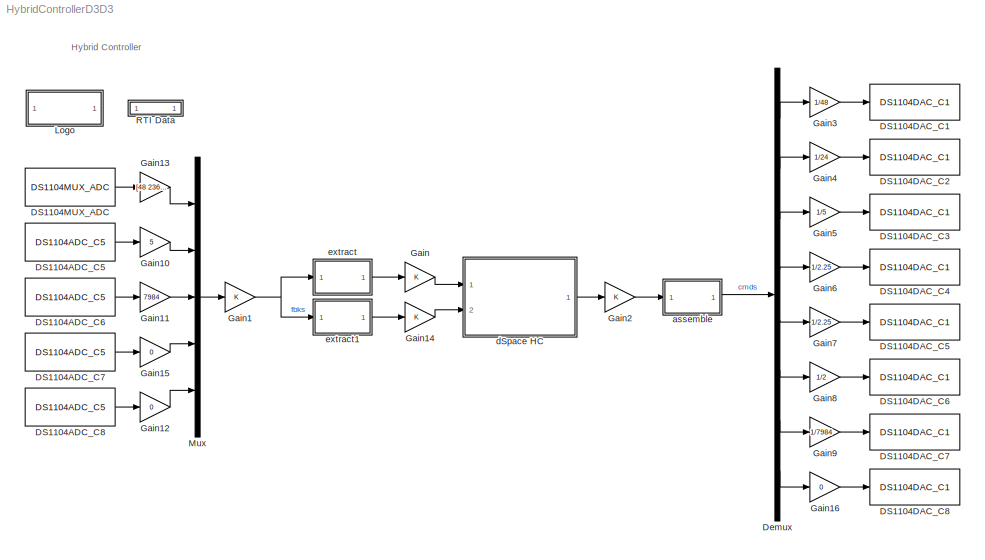
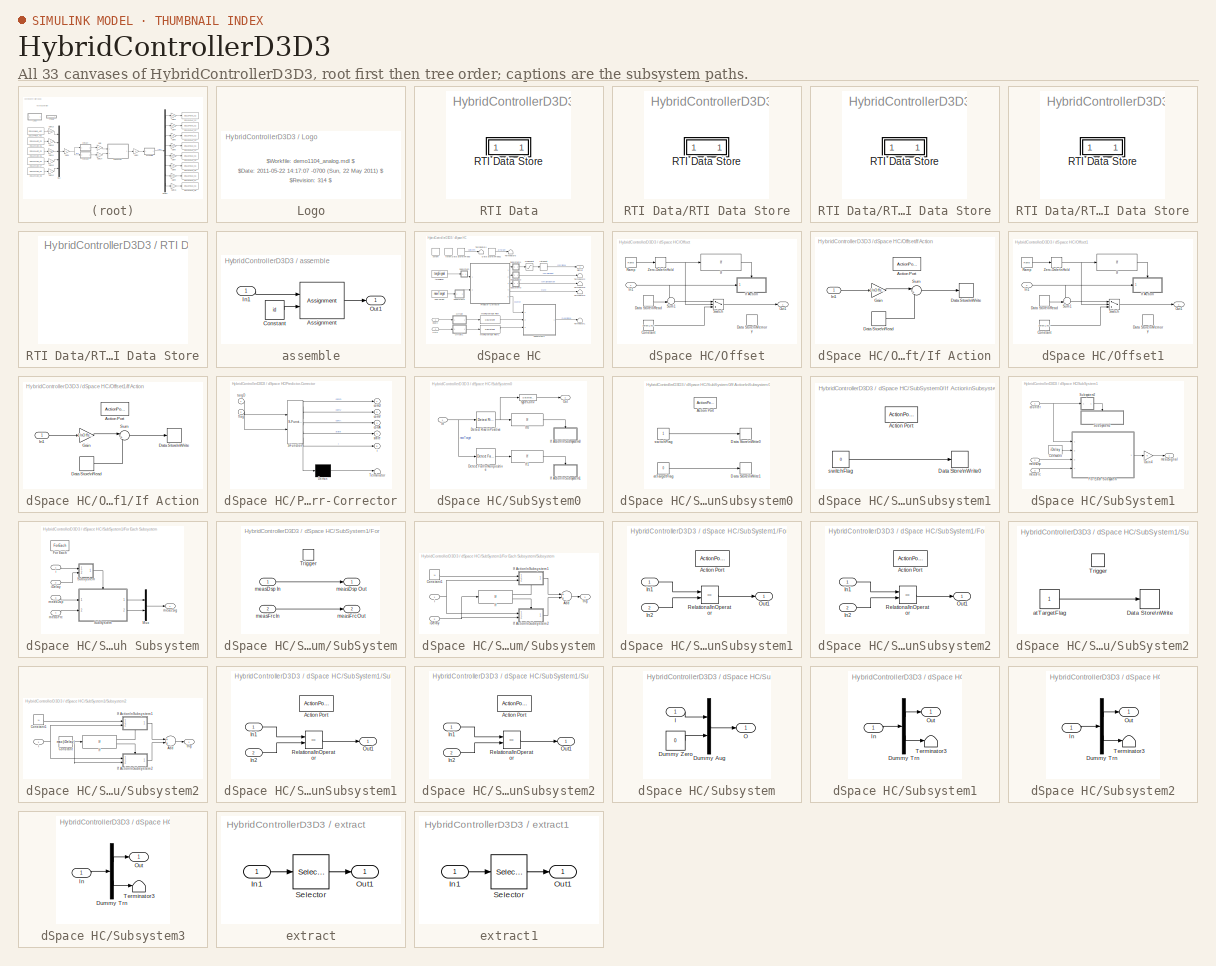
[diagram: thumbnail index - all 33 canvases of the model, root first then tree order]
MODEL HybridControllerD3D3
KIND model
CONFIG PostLoadFcn = , if any(exist('dsrtsu_mdlpostloadfcn', 'file') == [2, 3, 6]), try dsrtsu_mdlpostloadfcn('Execute', bdroot); catch fprintf('Error in PostLoadFcn (dsrtsu_mdlpostloadfcn) for model \"%s\":\\n %s\\n', bdroot, lasterr); end, end, \n
CONFIG PreLoadFcn = initializeSimulation
BLOCK [Reference] DS1104ADC_C5  REF=rtilib1104/DS1104 MASTER PPC/DS1104ADC_C5
  ChannelNo = 5
  DSProperties = struct('RTI',struct('Version',uint32(1),'BlockType',struct('isSLSource',uint8(1),'isSLSink',uint8(0),'isHWSource',uint8(1),'isHWSink',uint8(0),'isSetup',uint8(0),'isInline',uint8(1),'isNonInline',uint8(0),'isInterrupt',uint8(0),'isChannelwise',uint8(1)),'IOBoardType','DS1104MASTER','UnitType','ADC','Identifier','ADC','DialogType','ML','BlockSet','NONE','SlaveProcessor','NONE'))  <repeated x4 — deduplicated; at blocks: DS1104ADC_C5, DS1104ADC_C6, DS1104ADC_C7, DS1104ADC_C8>
  DialogFcn = gui1104adc
  Ports = [0, 1]
  Reserved1 = []
  Reserved2 = []
  Reserved3 = []
  Reserved4 = []
  SID = 473
  SourceBlock = rtilib1104/DS1104 MASTER PPC/DS1104ADC_C5
  SourceType = RTI
  TriggerMode = 0
  UnitName = { 'DS1104ADC_C' }
  UnitValues = { 5 }
BLOCK [Reference] DS1104ADC_C6  REF=rtilib1104/DS1104 MASTER PPC/DS1104ADC_C5
  ChannelNo = 6
  DialogFcn = gui1104adc
  Ports = [0, 1]
  Reserved1 = []
  Reserved2 = []
  Reserved3 = []
  Reserved4 = []
  SID = 474
  SourceBlock = rtilib1104/DS1104 MASTER PPC/DS1104ADC_C5
  SourceType = RTI
  TriggerMode = 0
  UnitName = { 'DS1104ADC_C' }
  UnitValues = { 6 }
BLOCK [Reference] DS1104ADC_C7  REF=rtilib1104/DS1104 MASTER PPC/DS1104ADC_C5
  ChannelNo = 7
  DialogFcn = gui1104adc
  Ports = [0, 1]
  Reserved1 = []
  Reserved2 = []
  Reserved3 = []
  Reserved4 = []
  SID = 475
  SourceBlock = rtilib1104/DS1104 MASTER PPC/DS1104ADC_C5
  SourceType = RTI
  TriggerMode = 0
  UnitName = { 'DS1104ADC_C' }
  UnitValues = { 7 }
BLOCK [Reference] DS1104ADC_C8  REF=rtilib1104/DS1104 MASTER PPC/DS1104ADC_C5
  ChannelNo = 8
  DialogFcn = gui1104adc
  Ports = [0, 1]
  Reserved1 = []
  Reserved2 = []
  Reserved3 = []
  Reserved4 = []
  SID = 476
  SourceBlock = rtilib1104/DS1104 MASTER PPC/DS1104ADC_C5
  SourceType = RTI
  TriggerMode = 0
  UnitName = { 'DS1104ADC_C' }
  UnitValues = { 8 }
BLOCK [Reference] DS1104DAC_C1  REF=rtilib1104/DS1104 MASTER PPC/DS1104DAC_C1
  ChannelNo = 1
  DSProperties = struct('RTI',struct('Version',uint32(1),'BlockType',struct('isSLSource',uint8(0),'isSLSink',uint8(1),'isHWSource',uint8(0),'isHWSink',uint8(1),'isSetup',uint8(0),'isInline',uint8(1),'isNonInline',uint8(0),'isInterrupt',uint8(0),'isChannelwise',uint8(1)),'IOBoardType','DS1104MASTER','UnitType','DAC','Identifier','DAC','DialogType','ML','BlockSet','NONE','SlaveProcessor','NONE'))  <repeated x8 — deduplicated; at blocks: DS1104DAC_C1, DS1104DAC_C2, DS1104DAC_C3, DS1104DAC_C4, DS1104DAC_C5, DS1104DAC_C6, DS1104DAC_C7, DS1104DAC_C8>
  DialogFcn = gui1104dac
  InitValue = 0
  Ports = [1]
  Reserved1 = []
  Reserved2 = []
  Reserved3 = []
  Reserved4 = []
  SID = 457
  SourceBlock = rtilib1104/DS1104 MASTER PPC/DS1104DAC_C1
  SourceType = RTI
  TermMode = 0
  TermValue = 0
  UnitName = { 'DS1104DAC_C'}
  UnitValues = { 1 }
BLOCK [Reference] DS1104DAC_C2  REF=rtilib1104/DS1104 MASTER PPC/DS1104DAC_C1
  ChannelNo = 2
  DialogFcn = gui1104dac
  InitValue = 0
  Ports = [1]
  Reserved1 = []
  Reserved2 = []
  Reserved3 = []
  Reserved4 = []
  SID = 458
  SourceBlock = rtilib1104/DS1104 MASTER PPC/DS1104DAC_C1
  SourceType = RTI
  TermMode = 0
  TermValue = 0
  UnitName = { 'DS1104DAC_C'}
  UnitValues = {2}
BLOCK [Reference] DS1104DAC_C3  REF=rtilib1104/DS1104 MASTER PPC/DS1104DAC_C1
  ChannelNo = 3
  DialogFcn = gui1104dac
  InitValue = 0
  Ports = [1]
  Reserved1 = []
  Reserved2 = []
  Reserved3 = []
  Reserved4 = []
  SID = 459
  SourceBlock = rtilib1104/DS1104 MASTER PPC/DS1104DAC_C1
  SourceType = RTI
  TermMode = 0
  TermValue = 0
  UnitName = { 'DS1104DAC_C'}
  UnitValues = {3}
BLOCK [Reference] DS1104DAC_C4  REF=rtilib1104/DS1104 MASTER PPC/DS1104DAC_C1
  ChannelNo = 4
  DialogFcn = gui1104dac
  InitValue = 0
  Ports = [1]
  Reserved1 = []
  Reserved2 = []
  Reserved3 = []
  Reserved4 = []
  SID = 460
  SourceBlock = rtilib1104/DS1104 MASTER PPC/DS1104DAC_C1
  SourceType = RTI
  TermMode = 0
  TermValue = 0
  UnitName = { 'DS1104DAC_C'}
  UnitValues = {4}
BLOCK [Reference] DS1104DAC_C5  REF=rtilib1104/DS1104 MASTER PPC/DS1104DAC_C1
  ChannelNo = 5
  DialogFcn = gui1104dac
  InitValue = 0
  Ports = [1]
  Reserved1 = []
  Reserved2 = []
  Reserved3 = []
  Reserved4 = []
  SID = 461
  SourceBlock = rtilib1104/DS1104 MASTER PPC/DS1104DAC_C1
  SourceType = RTI
  TermMode = 0
  TermValue = 0
  UnitName = { 'DS1104DAC_C'}
  UnitValues = {5}
BLOCK [Reference] DS1104DAC_C6  REF=rtilib1104/DS1104 MASTER PPC/DS1104DAC_C1
  ChannelNo = 6
  DialogFcn = gui1104dac
  InitValue = 0
  Ports = [1]
  Reserved1 = []
  Reserved2 = []
  Reserved3 = []
  Reserved4 = []
  SID = 462
  SourceBlock = rtilib1104/DS1104 MASTER PPC/DS1104DAC_C1
  SourceType = RTI
  TermMode = 0
  TermValue = 0
  UnitName = { 'DS1104DAC_C'}
  UnitValues = {6}
BLOCK [Reference] DS1104DAC_C7  REF=rtilib1104/DS1104 MASTER PPC/DS1104DAC_C1
  ChannelNo = 7
  DialogFcn = gui1104dac
  InitValue = 0
  Ports = [1]
  Reserved1 = []
  Reserved2 = []
  Reserved3 = []
  Reserved4 = []
  SID = 463
  SourceBlock = rtilib1104/DS1104 MASTER PPC/DS1104DAC_C1
  SourceType = RTI
  TermMode = 0
  TermValue = 0
  UnitName = { 'DS1104DAC_C'}
  UnitValues = {7}
BLOCK [Reference] DS1104DAC_C8  REF=rtilib1104/DS1104 MASTER PPC/DS1104DAC_C1
  ChannelNo = 8
  DialogFcn = gui1104dac
  InitValue = 0
  Ports = [1]
  Reserved1 = []
  Reserved2 = []
  Reserved3 = []
  Reserved4 = []
  SID = 464
  SourceBlock = rtilib1104/DS1104 MASTER PPC/DS1104DAC_C1
  SourceType = RTI
  TermMode = 0
  TermValue = 0
  UnitName = { 'DS1104DAC_C'}
  UnitValues = {8}
BLOCK [Reference] DS1104MUX_ADC  REF=rtilib1104/DS1104 MASTER PPC/DS1104MUX_ADC
  ChannelNos = [1 2 3 4]
  DSProperties = struct('RTI',struct('Version',uint32(1),'BlockType',struct('isSLSource',uint8(1),'isSLSink',uint8(0),'isHWSource',uint8(1),'isHWSink',uint8(0),'isSetup',uint8(0),'isInline',uint8(1),'isNonInline',uint8(0),'isInterrupt',uint8(0),'isChannelwise',uint8(0)),'IOBoardType','DS1104MASTER','UnitType','ADC','Identifier','ADCMUX','DialogType','ML','BlockSet','NONE','SlaveProcessor','NONE'))
  DialogFcn = gui1104mux_adc
  Ports = [0, 1]
  Reserved1 = []
  Reserved2 = []
  Reserved3 = []
  Reserved4 = []
  SID = 477
  SourceBlock = rtilib1104/DS1104 MASTER PPC/DS1104MUX_ADC
  SourceType = RTI
  TriggerMode = 0
  UnitName = { 'DS1104MUX_ADC' }
  UnitValues = { [] }
BLOCK [Demux] Demux
  DisplayOption = bar
  Outputs = 8
  Ports = [1, 8]
  SID = 465
BLOCK [Gain] Gain
  SID = 6
BLOCK [Gain] Gain1
  SID = 1018
BLOCK [Gain] Gain10
  Gain = 5
  SID = 478
BLOCK [Gain] Gain11
  Gain = 7984
  SID = 479
BLOCK [Gain] Gain12
  Gain = 0
  SID = 605
BLOCK [Gain] Gain13
  Gain = [48 2364.091 24 1846.9]
  SID = 481
BLOCK [Gain] Gain14
  SID = 2130
BLOCK [Gain] Gain15
  Gain = 0
  SID = 606
BLOCK [Gain] Gain16
  Gain = 0
  SID = 607
BLOCK [Gain] Gain2
  SID = 8
BLOCK [Gain] Gain3
  Gain = 1/48
  SID = 466
BLOCK [Gain] Gain4
  Gain = 1/24
  SID = 467
BLOCK [Gain] Gain5
  Gain = 1/5
  SID = 468
BLOCK [Gain] Gain6
  Gain = 1/2.25
  SID = 469
BLOCK [Gain] Gain7
  Gain = 1/2.25
  SID = 470
BLOCK [Gain] Gain8
  Gain = 1/2
  SID = 471
BLOCK [Gain] Gain9
  Gain = 1/7984
  SID = 472
BLOCK [SubSystem] Logo
  FunctionWithSeparateData = off
  MaskDisplay = image(imread('rti_mdl_dslogo.tif'));
  MaskEnableString = on
  MaskHideContents = off
  MaskIconFrame = on
  MaskIconOpaque = on
  MaskIconRotate = none
  MaskIconUnits = autoscale
  MaskPortRotate = default
  MaskPromptString = Mask Parameter 1:
  MaskStyleString = edit
  MaskToolTipString = on
  MaskTunableValueString = on
  MaskType = dSPACE
  MaskValueString = []
  MaskVariables = EmptyParameter=&1;
  MaskVisibilityString = off
  MinAlgLoopOccurrences = off
  Opaque = off
  OpenFcn = ;
  Ports = []
  PropExecContextOutsideSubsystem = off
  RTWSystemCode = Auto
  RequestExecContextInheritance = off
  SID = 9
BLOCK [Mux] Mux
  DisplayOption = bar
  Inputs = 5
  Ports = [5, 1]
  SID = 482
BLOCK [SubSystem] RTI Data
  CopyFcn = if exist('rtidc'), try,  rtidc('DataHostBlockClbCopy', gcbh); catch, disp(['Warning: ''CopyFcn'' for RTI Data block failed: ' lasterr]); end, end,
  DeleteFcn = if exist('rtidc'), try,  rtidc('DataHostBlockClbDelete', gcbh); catch, disp(['Warning: ''DeleteFcn'' for RTI Data block failed: ' lasterr]); end, end,
  FunctionWithSeparateData = off
  LoadFcn = if exist('rtidc'), try,  rtidc('DataHostBlockClbLoad', gcbh); catch, disp(['Warning: ''LoadFcn'' for RTI Data block failed: ' lasterr]); end, end,
  MaskDescription = RTI Data Block.\nThis block is used by RTI to store internal model-dependent data.\nPlease keep this block on the root level of the model. Deleting this block will result in data loss.\n\nNEVER DELETE OR COPY THIS BLOCK!
  MaskDisplay = text(0.5, 0.5, 'RTI Data', 'HorizontalAlignment', 'center');\nplot([1 0]);
  MaskHelp = RTI Data Block.\nThis block is used by RTI to store internal model-dependent data.\nPlease keep this block on the root level of the model. Deleting this block will result in data loss.\n\nNEVER DELETE OR COPY THIS BLOCK!
  MaskHideContents = off
  MaskIconFrame = on
  MaskIconOpaque = on
  MaskIconRotate = none
  MaskIconUnits = normalized
  MaskPortRotate = default
  MaskType = RTI_DATA_HOST
  MinAlgLoopOccurrences = off
  ModelCloseFcn = if exist('rtidc'), try,  rtidc('DataHostBlockClbModelClose', gcbh); catch, disp(['Warning: ''ModelCloseFcn'' for RTI Data block failed: ' lasterr]); end, end,
  NameChangeFcn = if exist('rtidc'), try,  rtidc('DataHostBlockClbNameChange', gcbh); catch, disp(['Warning: ''NameChangeFcn'' for RTI Data block failed: ' lasterr]); end, end,
  Opaque = off
  Ports = []
  PostSaveFcn = if exist('rtidc'), try,  rtidc('DataHostBlockClbPostSave', gcbh); catch, disp(['Warning: ''PostSaveFcn'' for RTI Data block failed: ' lasterr]); end, end,
  PreSaveFcn = if exist('rtidc'), try,  rtidc('DataHostBlockClbPreSave', gcbh); catch, disp(['Warning: ''PreSaveFcn'' for RTI Data block failed: ' lasterr]); end, end,
  PropExecContextOutsideSubsystem = off
  RTWSystemCode = Auto
  RequestExecContextInheritance = off
  SID = 10
  Tag = struct('RTIDataServer',struct('RTIDataServerVs','2','RTIModelDescription','struct(''main'',''HybridControllerD3D3withVA_3DOF'',''sub'','''',''isMp'',0)'))
BLOCK [SubSystem] RTI Data/RTI Data Store
  FunctionWithSeparateData = off
  MaskDescription = RTI Data Store Block. This block is used by RTI to store internal model dependent data. Deleting this block will result in data loss.\n\nNEVER DELETE, COPY, OR MODIFY THIS BLOCK!
  MaskDisplay = text(0.5, 0.5, ' ', 'HorizontalAlignment', 'center');
  MaskHelp = RTI Data Store Block. This block is used by RTI to store internal model dependent data. Deleting this block will result in data loss.\n\nNEVER DELETE, COPY, OR MODIFY THIS BLOCK!
  MaskHideContents = off
  MaskIconFrame = off
  MaskIconOpaque = on
  MaskIconRotate = none
  MaskIconUnits = normalized
  MaskPortRotate = default
  MaskType = RTI_DATA_STORE
  MinAlgLoopOccurrences = off
  Opaque = off
  Ports = []
  PropExecContextOutsideSubsystem = off
  RTWSystemCode = Auto
  RequestExecContextInheritance = off
  SID = 2126
  Tag = struct('private',struct('version',struct('dsVer',uint32(2),'dsVerCreation',uint32(2),'RTI',struct('ver','4.1a3','type','RTI1104')),'access',struct('type','Model','isPerm',1,'created',['13-Feb-2001 14:58:17'],'modified',['21-May-2014 13:43:50'],'location','')),'public',struct('main',struct('data',[]),'sub',struct('name',{{'HybridControllerD3D3withVA_3DOF'}},'data',{{struct('TH',struct('thTaskInfo',...<+910ch>
BLOCK [SubSystem] RTI Data/RTI Data Store/RTI Data Store
  FunctionWithSeparateData = off
  MaskDescription = RTI Data Store Block. This block is used by RTI to store internal model dependent data. Deleting this block will result in data loss.\n\nNEVER DELETE, COPY, OR MODIFY THIS BLOCK!
  MaskDisplay = text(0.5, 0.5, ' ', 'HorizontalAlignment', 'center');
  MaskHelp = RTI Data Store Block. This block is used by RTI to store internal model dependent data. Deleting this block will result in data loss.\n\nNEVER DELETE, COPY, OR MODIFY THIS BLOCK!
  MaskHideContents = off
  MaskIconFrame = off
  MaskIconOpaque = on
  MaskIconRotate = none
  MaskIconUnits = normalized
  MaskPortRotate = default
  MaskType = RTI_DATA_STORE
  MinAlgLoopOccurrences = off
  Opaque = off
  Ports = []
  PropExecContextOutsideSubsystem = off
  RTWSystemCode = Auto
  RequestExecContextInheritance = off
  SID = 2127
BLOCK [SubSystem] RTI Data/RTI Data Store/RTI Data Store/RTI Data Store
  FunctionWithSeparateData = off
  MaskDescription = RTI Data Store Block. This block is used by RTI to store internal model dependent data. Deleting this block will result in data loss.\n\nNEVER DELETE, COPY, OR MODIFY THIS BLOCK!
  MaskDisplay = text(0.5, 0.5, ' ', 'HorizontalAlignment', 'center');
  MaskHelp = RTI Data Store Block. This block is used by RTI to store internal model dependent data. Deleting this block will result in data loss.\n\nNEVER DELETE, COPY, OR MODIFY THIS BLOCK!
  MaskHideContents = off
  MaskIconFrame = off
  MaskIconOpaque = on
  MaskIconRotate = none
  MaskIconUnits = normalized
  MaskPortRotate = default
  MaskType = RTI_DATA_STORE
  MinAlgLoopOccurrences = off
  Opaque = off
  Ports = []
  PropExecContextOutsideSubsystem = off
  RTWSystemCode = Auto
  RequestExecContextInheritance = off
  SID = 2128
BLOCK [SubSystem] RTI Data/RTI Data Store/RTI Data Store/RTI Data Store/RTI Data Store
  FunctionWithSeparateData = off
  MaskDescription = RTI Data Store Block. This block is used by RTI to store internal model dependent data. Deleting this block will result in data loss.\n\nNEVER DELETE, COPY, OR MODIFY THIS BLOCK!
  MaskDisplay = text(0.5, 0.5, ' ', 'HorizontalAlignment', 'center');
  MaskHelp = RTI Data Store Block. This block is used by RTI to store internal model dependent data. Deleting this block will result in data loss.\n\nNEVER DELETE, COPY, OR MODIFY THIS BLOCK!
  MaskHideContents = off
  MaskIconFrame = off
  MaskIconOpaque = on
  MaskIconRotate = none
  MaskIconUnits = normalized
  MaskPortRotate = default
  MaskType = RTI_DATA_STORE
  MinAlgLoopOccurrences = off
  Opaque = off
  Ports = []
  PropExecContextOutsideSubsystem = off
  RTWSystemCode = Auto
  RequestExecContextInheritance = off
  SID = 2129
BLOCK [SubSystem] assemble
  FunctionWithSeparateData = off
  MaskCallbackString = |
  MaskDescription = To select to which actuator(s) the signals are going to
  MaskDisplay = disp('Assemble')
  MaskEnableString = on,on
  MaskHideContents = off
  MaskIconFrame = on
  MaskIconOpaque = on
  MaskIconRotate = none
  MaskIconUnits = autoscale
  MaskPortRotate = default
  MaskPromptString = Index Vector: id|Vector Size: size
  MaskStyleString = edit,edit
  MaskToolTipString = on,on
  MaskTunableValueString = on,on
  MaskType = to Actuators
  MaskValueString = [1 2]|8
  MaskVariables = id=@1;size=@2;
  MaskVisibilityString = on,on
  MinAlgLoopOccurrences = off
  Opaque = off
  Ports = [1, 1]
  PropExecContextOutsideSubsystem = off
  RTWSystemCode = Auto
  RequestExecContextInheritance = off
  SID = 444
BLOCK [Assignment] assemble/Assignment
  IndexOptions = Index vector (port)
  Indices = 1
  OutputInitialize = Specify size for each dimension in table
  OutputSizes = size
  Ports = [2, 1]
  SID = 2158
BLOCK [Constant] assemble/Constant
  SID = 2159
  Value = id
BLOCK [Inport] assemble/In1
  IconDisplay = Port number
  SID = 2157
BLOCK [Outport] assemble/Out1
  IconDisplay = Port number
  SID = 2160
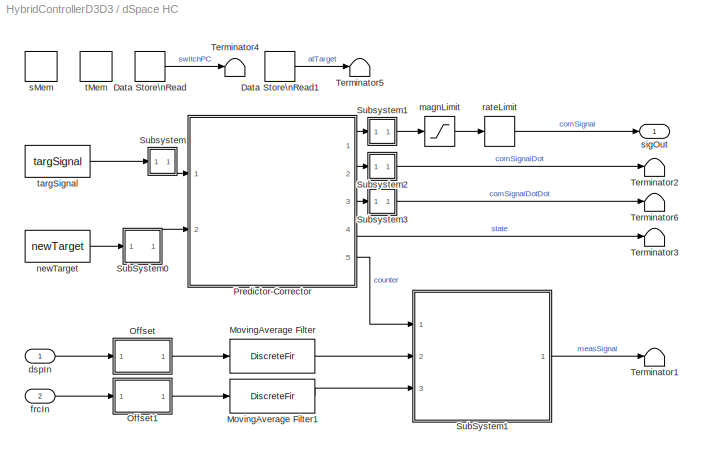
BLOCK [SubSystem] dSpace HC
  FunctionWithSeparateData = off
  MaskCallbackString = |||||||
  MaskDescription = Hybrid Controller using C0-continuous cubic Lagrange interpolation for prediction and correction
  MaskDisplay = disp('dSpace\\nHybrid Controller\\n(D3/D3)')
  MaskEnableString = on,on,on,on,on,on,on,on
  MaskHideContents = off
  MaskIconFrame = on
  MaskIconOpaque = on
  MaskIconRotate = none
  MaskIconUnits = autoscale
  MaskPortRotate = default
  MaskPromptString = Number of DOF: nDOF|Integration time step: dtInt|Simulation time step: dtSim|Controller time step: dtCon|Maximum number of substeps: N|Number of delay steps: iDelay|Signal magnitude limit: magnLim|Signal rate limit: rateLim
  MaskStyleString = edit,edit,edit,edit,edit,edit,edit,edit
  MaskToolTipString = on,on,on,on,on,on,on,on
  MaskTunableValueString = off,on,on,on,on,on,on,on
  MaskType = Hybrid Controller: D3/D3
  MaskValueString = HybridCtrlParameters.nDOF|HybridCtrlParameters.dtInt|HybridCtrlParameters.dtSim|HybridCtrlParameters.dtCon|HybridCtrlParameters.N|HybridCtrlParameters.iDelay|HybridCtrlParameters.magnLim|HybridCtrlParameters.rateLim
  MaskVariables = nDOF=@1;dtInt=@2;dtSim=@3;dtCon=@4;N=@5;iDelay=@6;magnLim=@7;rateLim=@8;
  MaskVisibilityString = on,on,on,on,on,on,on,on
  MinAlgLoopOccurrences = off
  Opaque = off
  Ports = [2, 1]
  PropExecContextOutsideSubsystem = off
  RTWSystemCode = Auto
  RequestExecContextInheritance = off
  SID = 15
BLOCK [DataStoreRead] dSpace HC/Data Store\nRead
  DataStoreName = sFlag
  Ports = [0, 1]
  SID = 18
  SampleTime = dtCon
BLOCK [DataStoreRead] dSpace HC/Data Store\nRead1
  DataStoreName = tFlag
  Ports = [0, 1]
  SID = 19
  SampleTime = dtCon
BLOCK [DiscreteFir] dSpace HC/MovingAverage Filter
  Coefficients = 1/numSample*ones(1,numSample)
  MaskDescription = Moving average filter by using discrete FIR filter.\nSet numSample = 1 for no filtering.
  MaskDisplay = fprintf('MovingAverage\\nFilter')
  MaskEnableString = on
  MaskIconFrame = on
  MaskIconOpaque = on
  MaskIconRotate = none
  MaskIconUnits = autoscale
  MaskPortRotate = default
  MaskPromptString = Number of Samples: numSample
  MaskStyleString = edit
  MaskToolTipString = on
  MaskTunableValueString = on
  MaskType = Moving Average Filter
  MaskValueString = 1
  MaskVariables = numSample=@1;
  MaskVisibilityString = on
  Ports = [1, 1]
  SID = 2231
BLOCK [DiscreteFir] dSpace HC/MovingAverage Filter1
  Coefficients = 1/numSample*ones(1,numSample)
  MaskDescription = Moving average filter by using discrete FIR filter.\nSet numSample = 1 for no filtering.
  MaskDisplay = fprintf('MovingAverage\\nFilter')
  MaskEnableString = on
  MaskIconFrame = on
  MaskIconOpaque = on
  MaskIconRotate = none
  MaskIconUnits = autoscale
  MaskPortRotate = default
  MaskPromptString = Number of Samples: numSample
  MaskStyleString = edit
  MaskToolTipString = on
  MaskTunableValueString = on
  MaskType = Moving Average Filter
  MaskValueString = 1
  MaskVariables = numSample=@1;
  MaskVisibilityString = on
  Ports = [1, 1]
  SID = 2267
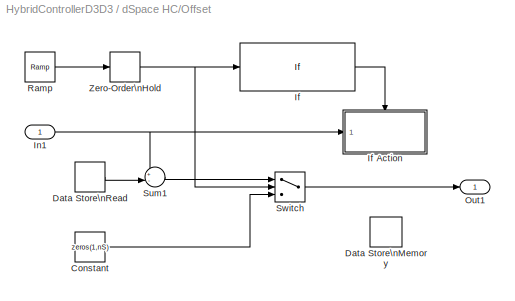
BLOCK [SubSystem] dSpace HC/Offset
  FunctionWithSeparateData = off
  MaskCallbackString = ||
  MaskDescription = Offset signal by average of signal over initial number of samples.\nSet nOffset = -1 for no signal offset.
  MaskDisplay = fprintf('Signal\\nOffset')
  MaskEnableString = on,on,on
  MaskHideContents = off
  MaskIconFrame = on
  MaskIconOpaque = on
  MaskIconRotate = none
  MaskIconUnits = autoscale
  MaskPortRotate = default
  MaskPromptString = Number of Signals: nS|Number of samples to initialize offset: nOffset|Sample time: dt
  MaskStyleString = edit,edit,edit
  MaskToolTipString = on,on,on
  MaskTunableValueString = on,on,on
  MaskType = Signal Offset
  MaskValueString = nDOF|1024|dtCon
  MaskVariables = nS=@1;nOffset=@2;dt=@3;
  MaskVisibilityString = on,on,on
  MinAlgLoopOccurrences = off
  Opaque = off
  Ports = [1, 1]
  PropExecContextOutsideSubsystem = off
  RTWSystemCode = Auto
  RequestExecContextInheritance = off
  SID = 2230
BLOCK [Constant] dSpace HC/Offset/Constant
  SID = 2233
  Value = zeros(1,nS)
BLOCK [DataStoreMemory] dSpace HC/Offset/Data Store\nMemory
  DataStoreName = x0
  InitialValue = zeros(1,nS)
  OutDataTypeStr = double
  SID = 2234
  SignalType = real
BLOCK [DataStoreRead] dSpace HC/Offset/Data Store\nRead
  DataStoreName = x0
  Ports = [0, 1]
  SID = 2235
  SampleTime = dt
BLOCK [If] dSpace HC/Offset/If
  IfExpression = u1 < nOffset
  Ports = [1, 1]
  SID = 2236
  ShowElse = off
BLOCK [SubSystem] dSpace HC/Offset/If Action
  FunctionWithSeparateData = off
  MaskHideContents = off
  MinAlgLoopOccurrences = off
  Opaque = off
  Ports = [1, 0, 0, 0, 0, 0, 0, 1]
  PropExecContextOutsideSubsystem = off
  RTWSystemCode = Auto
  RequestExecContextInheritance = off
  SID = 2237
  TreatAsAtomicUnit = on
BLOCK [ActionPort] dSpace HC/Offset/If Action/Action Port
  PropagateVarSize = During execution
  SID = 2239
BLOCK [DataStoreRead] dSpace HC/Offset/If Action/Data Store\nRead
  DataStoreName = x0
  Ports = [0, 1]
  SID = 2240
  SampleTime = dt
BLOCK [DataStoreWrite] dSpace HC/Offset/If Action/Data Store\nWrite
  DataStoreName = x0
  Ports = [1]
  SID = 2241
BLOCK [Gain] dSpace HC/Offset/If Action/Gain
  Gain = 1/nOffset
  SID = 2242
BLOCK [Inport] dSpace HC/Offset/If Action/In1
  IconDisplay = Port number
  SID = 2238
BLOCK [Sum] dSpace HC/Offset/If Action/Sum
  IconShape = round
  Inputs = |++
  Ports = [2, 1]
  SID = 2243
BLOCK [Inport] dSpace HC/Offset/In1
  IconDisplay = Port number
  SID = 2232
BLOCK [Outport] dSpace HC/Offset/Out1
  IconDisplay = Port number
  SID = 2248
BLOCK [Reference] dSpace HC/Offset/Ramp  REF=simulink/Sources/Ramp
  Ports = [0, 1]
  SID = 2244
  SourceBlock = simulink/Sources/Ramp
  SourceType = Ramp
  VectorParams1D = on
  X0 = 0
  slope = 1/dt
  start = 0
BLOCK [Sum] dSpace HC/Offset/Sum1
  IconShape = round
  Inputs = +-|
  Ports = [2, 1]
  SID = 2245
BLOCK [Switch] dSpace HC/Offset/Switch
  SID = 2246
  Threshold = nOffset
BLOCK [ZeroOrderHold] dSpace HC/Offset/Zero-Order\nHold
  SID = 2247
  SampleTime = dt
BLOCK [SubSystem] dSpace HC/Offset1
  FunctionWithSeparateData = off
  MaskCallbackString = ||
  MaskDescription = Offset signal by average of signal over initial number of samples.\nSet nOffset = -1 for no signal offset.
  MaskDisplay = fprintf('Signal\\nOffset')
  MaskEnableString = on,on,on
  MaskHideContents = off
  MaskIconFrame = on
  MaskIconOpaque = on
  MaskIconRotate = none
  MaskIconUnits = autoscale
  MaskPortRotate = default
  MaskPromptString = Number of Signals: nS|Number of samples to initialize offset: nOffset|Sample time: dt
  MaskStyleString = edit,edit,edit
  MaskToolTipString = on,on,on
  MaskTunableValueString = on,on,on
  MaskType = Signal Offset
  MaskValueString = nDOF|1024|dtCon
  MaskVariables = nS=@1;nOffset=@2;dt=@3;
  MaskVisibilityString = on,on,on
  MinAlgLoopOccurrences = off
  Opaque = off
  Ports = [1, 1]
  PropExecContextOutsideSubsystem = off
  RTWSystemCode = Auto
  RequestExecContextInheritance = off
  SID = 2249
BLOCK [Constant] dSpace HC/Offset1/Constant
  SID = 2251
  Value = zeros(1,nS)
BLOCK [DataStoreMemory] dSpace HC/Offset1/Data Store\nMemory
  DataStoreName = x0
  InitialValue = zeros(1,nS)
  OutDataTypeStr = double
  SID = 2252
  SignalType = real
BLOCK [DataStoreRead] dSpace HC/Offset1/Data Store\nRead
  DataStoreName = x0
  Ports = [0, 1]
  SID = 2253
  SampleTime = dt
BLOCK [If] dSpace HC/Offset1/If
  IfExpression = u1 < nOffset
  Ports = [1, 1]
  SID = 2254
  ShowElse = off
BLOCK [SubSystem] dSpace HC/Offset1/If Action
  FunctionWithSeparateData = off
  MaskHideContents = off
  MinAlgLoopOccurrences = off
  Opaque = off
  Ports = [1, 0, 0, 0, 0, 0, 0, 1]
  PropExecContextOutsideSubsystem = off
  RTWSystemCode = Auto
  RequestExecContextInheritance = off
  SID = 2255
  TreatAsAtomicUnit = on
BLOCK [ActionPort] dSpace HC/Offset1/If Action/Action Port
  PropagateVarSize = During execution
  SID = 2257
BLOCK [DataStoreRead] dSpace HC/Offset1/If Action/Data Store\nRead
  DataStoreName = x0
  Ports = [0, 1]
  SID = 2258
  SampleTime = dt
BLOCK [DataStoreWrite] dSpace HC/Offset1/If Action/Data Store\nWrite
  DataStoreName = x0
  Ports = [1]
  SID = 2259
BLOCK [Gain] dSpace HC/Offset1/If Action/Gain
  Gain = 1/nOffset
  SID = 2260
BLOCK [Inport] dSpace HC/Offset1/If Action/In1
  IconDisplay = Port number
  SID = 2256
BLOCK [Sum] dSpace HC/Offset1/If Action/Sum
  IconShape = round
  Inputs = |++
  Ports = [2, 1]
  SID = 2261
BLOCK [Inport] dSpace HC/Offset1/In1
  IconDisplay = Port number
  SID = 2250
BLOCK [Outport] dSpace HC/Offset1/Out1
  IconDisplay = Port number
  SID = 2266
BLOCK [Reference] dSpace HC/Offset1/Ramp  REF=simulink/Sources/Ramp
  Ports = [0, 1]
  SID = 2262
  SourceBlock = simulink/Sources/Ramp
  SourceType = Ramp
  VectorParams1D = on
  X0 = 0
  slope = 1/dt
  start = 0
BLOCK [Sum] dSpace HC/Offset1/Sum1
  IconShape = round
  Inputs = +-|
  Ports = [2, 1]
  SID = 2263
BLOCK [Switch] dSpace HC/Offset1/Switch
  SID = 2264
  Threshold = nOffset
BLOCK [ZeroOrderHold] dSpace HC/Offset1/Zero-Order\nHold
  SID = 2265
  SampleTime = dt
BLOCK [SubSystem] dSpace HC/Predictor-Corrector
  ErrorFcn = Stateflow.Translate.translate
  FunctionWithSeparateData = off
  MaskHideContents = off
  MinAlgLoopOccurrences = off
  Opaque = off
  PermitHierarchicalResolution = ExplicitOnly
  Ports = [2, 5]
  PropExecContextOutsideSubsystem = off
  RTWSystemCode = Auto
  RequestExecContextInheritance = off
  SFBlockType = Chart
  SID = 325
  TreatAsAtomicUnit = on
BLOCK [Demux] dSpace HC/Predictor-Corrector/ Demux 
  Outputs = 1
  Ports = [1, 1]
  SID = 325::14
BLOCK [S-Function] dSpace HC/Predictor-Corrector/ SFunction 
  EnableBusSupport = on
  FunctionName = sf_sfun
  Parameters = N,dtCon,dtInt,dtSim,nDOF
  PortCounts = [2 6]
  Ports = [2, 6]
  SID = 325::13
  Tag = Stateflow S-Function HybridControllerD3D3 2
BLOCK [Terminator] dSpace HC/Predictor-Corrector/ Terminator 
  SID = 325::15
BLOCK [Outport] dSpace HC/Predictor-Corrector/comA
  IconDisplay = Port number
  Port = 3
  SID = 325::17
BLOCK [Outport] dSpace HC/Predictor-Corrector/comD
  IconDisplay = Port number
  SID = 325::6
BLOCK [Outport] dSpace HC/Predictor-Corrector/comV
  IconDisplay = Port number
  Port = 2
  SID = 325::16
BLOCK [Inport] dSpace HC/Predictor-Corrector/flag
  IconDisplay = Port number
  Port = 2
  SID = 325::2
BLOCK [Outport] dSpace HC/Predictor-Corrector/i
  IconDisplay = Port number
  Port = 5
  SID = 325::8
BLOCK [Outport] dSpace HC/Predictor-Corrector/state
  IconDisplay = Port number
  Port = 4
  SID = 325::7
BLOCK [Inport] dSpace HC/Predictor-Corrector/targD
  IconDisplay = Port number
  SID = 325::1
BLOCK [SubSystem] dSpace HC/SubSystem0
  FunctionWithSeparateData = off
  MaskHideContents = off
  MinAlgLoopOccurrences = off
  Opaque = off
  Ports = [1, 1]
  PropExecContextOutsideSubsystem = off
  RTWSystemCode = Auto
  RequestExecContextInheritance = off
  SID = 60
BLOCK [Reference] dSpace HC/SubSystem0/Detect Fall\nNonpositive  REF=simulink/Logic and Bit\nOperations/Detect Fall\nNonpositive
  InputProcessing = Inherited
  OutDataTypeStr = uint8
  Ports = [1, 1]
  SID = 62
  SourceBlock = simulink/Logic and Bit\nOperations/Detect Fall\nNonpositive
  SourceType = Detect Fall Nonpositive
  vinit = 0
BLOCK [Reference] dSpace HC/SubSystem0/Detect Rise\nPositive  REF=simulink/Logic and Bit\nOperations/Detect Rise\nPositive
  InputProcessing = Inherited
  OutDataTypeStr = uint8
  Ports = [1, 1]
  SID = 63
  SourceBlock = simulink/Logic and Bit\nOperations/Detect Rise\nPositive
  SourceType = Detect Rise Positive
  vinit = 0
BLOCK [SubSystem] dSpace HC/SubSystem0/If Action\nSubsystem0
  FunctionWithSeparateData = off
  MaskHideContents = off
  MinAlgLoopOccurrences = off
  Opaque = off
  Ports = [0, 0, 0, 0, 0, 0, 0, 1]
  PropExecContextOutsideSubsystem = off
  RTWSystemCode = Auto
  RequestExecContextInheritance = off
  SID = 64
  TreatAsAtomicUnit = on
BLOCK [ActionPort] dSpace HC/SubSystem0/If Action\nSubsystem0/Action Port
  ActionType = then
  PropagateVarSize = During execution
  SID = 65
BLOCK [DataStoreWrite] dSpace HC/SubSystem0/If Action\nSubsystem0/Data Store\nWrite0
  DataStoreName = sFlag
  Ports = [1]
  SID = 66
BLOCK [DataStoreWrite] dSpace HC/SubSystem0/If Action\nSubsystem0/Data Store\nWrite1
  DataStoreName = tFlag
  Ports = [1]
  SID = 67
BLOCK [Constant] dSpace HC/SubSystem0/If Action\nSubsystem0/atTargetFlag
  OutDataTypeStr = int32
  SID = 68
  SampleTime = dtCon
  Value = 0
BLOCK [Constant] dSpace HC/SubSystem0/If Action\nSubsystem0/switchFlag
  OutDataTypeStr = int32
  SID = 69
  SampleTime = dtCon
BLOCK [SubSystem] dSpace HC/SubSystem0/If Action\nSubsystem1
  FunctionWithSeparateData = off
  MaskHideContents = off
  MinAlgLoopOccurrences = off
  Opaque = off
  Ports = [0, 0, 0, 0, 0, 0, 0, 1]
  PropExecContextOutsideSubsystem = off
  RTWSystemCode = Auto
  RequestExecContextInheritance = off
  SID = 70
  TreatAsAtomicUnit = on
BLOCK [ActionPort] dSpace HC/SubSystem0/If Action\nSubsystem1/Action Port
  ActionType = then
  PropagateVarSize = During execution
  SID = 71
BLOCK [DataStoreWrite] dSpace HC/SubSystem0/If Action\nSubsystem1/Data Store\nWrite0
  DataStoreName = sFlag
  Ports = [1]
  SID = 72
BLOCK [Constant] dSpace HC/SubSystem0/If Action\nSubsystem1/switchFlag
  OutDataTypeStr = int32
  SID = 73
  SampleTime = dtCon
  Value = 0
BLOCK [If] dSpace HC/SubSystem0/If0
  IfExpression = u1 == 1
  Ports = [1, 1]
  SID = 74
  ShowElse = off
BLOCK [If] dSpace HC/SubSystem0/If1
  IfExpression = u1 == 1
  Ports = [1, 1]
  SID = 75
  ShowElse = off
BLOCK [Inport] dSpace HC/SubSystem0/In
  IconDisplay = Port number
  SID = 61
BLOCK [Outport] dSpace HC/SubSystem0/Out
  IconDisplay = Port number
  SID = 77
BLOCK [DataTypeConversion] dSpace HC/SubSystem0/typeConv
  OutDataTypeStr = int32
  SID = 76
BLOCK [SubSystem] dSpace HC/SubSystem1
  FunctionWithSeparateData = off
  MaskHideContents = off
  MinAlgLoopOccurrences = off
  Opaque = off
  Ports = [3, 1]
  PropExecContextOutsideSubsystem = off
  RTWSystemCode = Auto
  RequestExecContextInheritance = off
  SID = 2268
BLOCK [Constant] dSpace HC/SubSystem1/Constant
  SID = 2272
  Value = iDelay
BLOCK [SubSystem] dSpace HC/SubSystem1/For Each Subsystem
  FunctionWithSeparateData = off
  MaskHideContents = off
  MinAlgLoopOccurrences = off
  Opaque = off
  Ports = [4, 1]
  PropExecContextOutsideSubsystem = off
  RTWSystemCode = Auto
  RequestExecContextInheritance = off
  SID = 2273
  TreatAsAtomicUnit = on
BLOCK [ForEach] dSpace HC/SubSystem1/For Each Subsystem/For Each
  DisableCoverage = on
  IndexMode = One-based
  Ports = []
  SID = 2278
BLOCK [Mux] dSpace HC/SubSystem1/For Each Subsystem/Mux
  DisplayOption = bar
  Inputs = 2
  Ports = [2, 1]
  SID = 2279
BLOCK [SubSystem] dSpace HC/SubSystem1/For Each Subsystem/SubSystem
  FunctionWithSeparateData = off
  MaskHideContents = off
  MinAlgLoopOccurrences = off
  Opaque = off
  Ports = [2, 2, 0, 1]
  PropExecContextOutsideSubsystem = off
  RTWSystemCode = Auto
  RequestExecContextInheritance = off
  SID = 2280
  TreatAsAtomicUnit = on
BLOCK [TriggerPort] dSpace HC/SubSystem1/For Each Subsystem/SubSystem/Trigger
  Ports = []
  SID = 2283
  StatesWhenEnabling = held
BLOCK [Inport] dSpace HC/SubSystem1/For Each Subsystem/SubSystem/measDsp In
  IconDisplay = Port number
  SID = 2281
BLOCK [Outport] dSpace HC/SubSystem1/For Each Subsystem/SubSystem/measDsp Out
  IconDisplay = Port number
  InitialOutput = [0]
  SID = 2284
BLOCK [Inport] dSpace HC/SubSystem1/For Each Subsystem/SubSystem/measFrc In
  IconDisplay = Port number
  Port = 2
  SID = 2282
BLOCK [Outport] dSpace HC/SubSystem1/For Each Subsystem/SubSystem/measFrc Out
  IconDisplay = Port number
  InitialOutput = [0]
  Port = 2
  SID = 2285
BLOCK [SubSystem] dSpace HC/SubSystem1/For Each Subsystem/Subsystem
  FunctionWithSeparateData = off
  MaskHideContents = off
  MinAlgLoopOccurrences = off
  Opaque = off
  Ports = [2, 1]
  PropExecContextOutsideSubsystem = off
  RTWSystemCode = Auto
  RequestExecContextInheritance = off
  SID = 2286
BLOCK [Sum] dSpace HC/SubSystem1/For Each Subsystem/Subsystem/Add
  InputSameDT = off
  OutDataTypeStr = Inherit: Inherit via internal rule
  Ports = [2, 1]
  SID = 2289
  SaturateOnIntegerOverflow = off
BLOCK [Constant] dSpace HC/SubSystem1/For Each Subsystem/Subsystem/Constant1
  SID = 2290
  Value = N
BLOCK [If] dSpace HC/SubSystem1/For Each Subsystem/Subsystem/If
  IfExpression = u1 == 0
  Ports = [1, 2]
  SID = 2291
BLOCK [SubSystem] dSpace HC/SubSystem1/For Each Subsystem/Subsystem/If Action\nSubsystem1
  FunctionWithSeparateData = off
  MaskHideContents = off
  MinAlgLoopOccurrences = off
  Opaque = off
  Ports = [2, 1, 0, 0, 0, 0, 0, 1]
  PropExecContextOutsideSubsystem = off
  RTWSystemCode = Auto
  RequestExecContextInheritance = off
  SID = 2292
  TreatAsAtomicUnit = on
BLOCK [ActionPort] dSpace HC/SubSystem1/For Each Subsystem/Subsystem/If Action\nSubsystem1/Action Port
  SID = 2295
BLOCK [Inport] dSpace HC/SubSystem1/For Each Subsystem/Subsystem/If Action\nSubsystem1/In1
  IconDisplay = Port number
  SID = 2293
BLOCK [Inport] dSpace HC/SubSystem1/For Each Subsystem/Subsystem/If Action\nSubsystem1/In2
  IconDisplay = Port number
  Port = 2
  SID = 2294
BLOCK [Outport] dSpace HC/SubSystem1/For Each Subsystem/Subsystem/If Action\nSubsystem1/Out1
  IconDisplay = Port number
  SID = 2297
BLOCK [RelationalOperator] dSpace HC/SubSystem1/For Each Subsystem/Subsystem/If Action\nSubsystem1/Relational\nOperator
  InputSameDT = off
  Operator = ==
  OutDataTypeStr = boolean
  Ports = [2, 1]
  SID = 2296
BLOCK [SubSystem] dSpace HC/SubSystem1/For Each Subsystem/Subsystem/If Action\nSubsystem2
  FunctionWithSeparateData = off
  MaskHideContents = off
  MinAlgLoopOccurrences = off
  Opaque = off
  Ports = [2, 1, 0, 0, 0, 0, 0, 1]
  PropExecContextOutsideSubsystem = off
  RTWSystemCode = Auto
  RequestExecContextInheritance = off
  SID = 2298
  TreatAsAtomicUnit = on
BLOCK [ActionPort] dSpace HC/SubSystem1/For Each Subsystem/Subsystem/If Action\nSubsystem2/Action Port
  SID = 2301
BLOCK [Inport] dSpace HC/SubSystem1/For Each Subsystem/Subsystem/If Action\nSubsystem2/In1
  IconDisplay = Port number
  SID = 2299
BLOCK [Inport] dSpace HC/SubSystem1/For Each Subsystem/Subsystem/If Action\nSubsystem2/In2
  IconDisplay = Port number
  Port = 2
  SID = 2300
BLOCK [Outport] dSpace HC/SubSystem1/For Each Subsystem/Subsystem/If Action\nSubsystem2/Out1
  IconDisplay = Port number
  SID = 2303
BLOCK [RelationalOperator] dSpace HC/SubSystem1/For Each Subsystem/Subsystem/If Action\nSubsystem2/Relational\nOperator
  InputSameDT = off
  Operator = ==
  OutDataTypeStr = boolean
  Ports = [2, 1]
  SID = 2302
BLOCK [Inport] dSpace HC/SubSystem1/For Each Subsystem/Subsystem/i
  IconDisplay = Port number
  SID = 2287
BLOCK [Inport] dSpace HC/SubSystem1/For Each Subsystem/Subsystem/iDelay
  IconDisplay = Port number
  Port = 2
  SID = 2288
BLOCK [Outport] dSpace HC/SubSystem1/For Each Subsystem/Subsystem/trig
  IconDisplay = Port number
  SID = 2304
BLOCK [Inport] dSpace HC/SubSystem1/For Each Subsystem/i
  IconDisplay = Port number
  Partition = off
  SID = 2274
BLOCK [Inport] dSpace HC/SubSystem1/For Each Subsystem/iDelay
  IconDisplay = Port number
  Partition = on
  PartitionDimension = 1
  PartitionWidth = 1
  Port = 2
  SID = 2275
BLOCK [Inport] dSpace HC/SubSystem1/For Each Subsystem/measDsp
  IconDisplay = Port number
  Partition = on
  PartitionDimension = 1
  PartitionWidth = 1
  Port = 3
  SID = 2276
BLOCK [Inport] dSpace HC/SubSystem1/For Each Subsystem/measFrc
  IconDisplay = Port number
  Partition = on
  PartitionDimension = 1
  PartitionWidth = 1
  Port = 4
  SID = 2277
BLOCK [Outport] dSpace HC/SubSystem1/For Each Subsystem/measSig
  ConcatenationDimension = 1
  IconDisplay = Port number
  SID = 2305
BLOCK [Gain] dSpace HC/SubSystem1/Gain4
  SID = 2306
BLOCK [SubSystem] dSpace HC/SubSystem1/SubSystem2
  FunctionWithSeparateData = off
  MaskHideContents = off
  MinAlgLoopOccurrences = off
  Opaque = off
  Ports = [0, 0, 0, 1]
  PropExecContextOutsideSubsystem = off
  RTWSystemCode = Auto
  RequestExecContextInheritance = off
  SID = 2307
  TreatAsAtomicUnit = on
BLOCK [DataStoreWrite] dSpace HC/SubSystem1/SubSystem2/Data Store\nWrite
  DataStoreName = tFlag
  Ports = [1]
  SID = 2309
BLOCK [TriggerPort] dSpace HC/SubSystem1/SubSystem2/Trigger
  Ports = []
  SID = 2308
  StatesWhenEnabling = held
BLOCK [Constant] dSpace HC/SubSystem1/SubSystem2/atTargetFlag
  OutDataTypeStr = int32
  SID = 2310
  SampleTime = -1
BLOCK [SubSystem] dSpace HC/SubSystem1/Subsystem2
  FunctionWithSeparateData = off
  MaskHideContents = off
  MinAlgLoopOccurrences = off
  Opaque = off
  Ports = [1, 1]
  PropExecContextOutsideSubsystem = off
  RTWSystemCode = Auto
  RequestExecContextInheritance = off
  SID = 2311
BLOCK [Sum] dSpace HC/SubSystem1/Subsystem2/Add
  InputSameDT = off
  OutDataTypeStr = Inherit: Inherit via internal rule
  Ports = [2, 1]
  SID = 2313
  SaturateOnIntegerOverflow = off
BLOCK [Constant] dSpace HC/SubSystem1/Subsystem2/Constant
  SID = 2314
  Value = max(iDelay)
BLOCK [Constant] dSpace HC/SubSystem1/Subsystem2/Constant1
  SID = 2315
  Value = N
BLOCK [If] dSpace HC/SubSystem1/Subsystem2/If
  IfExpression = u1 == 0
  Ports = [1, 2]
  SID = 2316
BLOCK [SubSystem] dSpace HC/SubSystem1/Subsystem2/If Action\nSubsystem1
  FunctionWithSeparateData = off
  MaskHideContents = off
  MinAlgLoopOccurrences = off
  Opaque = off
  Ports = [2, 1, 0, 0, 0, 0, 0, 1]
  PropExecContextOutsideSubsystem = off
  RTWSystemCode = Auto
  RequestExecContextInheritance = off
  SID = 2317
  TreatAsAtomicUnit = on
BLOCK [ActionPort] dSpace HC/SubSystem1/Subsystem2/If Action\nSubsystem1/Action Port
  SID = 2320
BLOCK [Inport] dSpace HC/SubSystem1/Subsystem2/If Action\nSubsystem1/In1
  IconDisplay = Port number
  SID = 2318
BLOCK [Inport] dSpace HC/SubSystem1/Subsystem2/If Action\nSubsystem1/In2
  IconDisplay = Port number
  Port = 2
  SID = 2319
BLOCK [Outport] dSpace HC/SubSystem1/Subsystem2/If Action\nSubsystem1/Out1
  IconDisplay = Port number
  SID = 2322
BLOCK [RelationalOperator] dSpace HC/SubSystem1/Subsystem2/If Action\nSubsystem1/Relational\nOperator
  InputSameDT = off
  Operator = ==
  OutDataTypeStr = boolean
  Ports = [2, 1]
  SID = 2321
BLOCK [SubSystem] dSpace HC/SubSystem1/Subsystem2/If Action\nSubsystem2
  FunctionWithSeparateData = off
  MaskHideContents = off
  MinAlgLoopOccurrences = off
  Opaque = off
  Ports = [2, 1, 0, 0, 0, 0, 0, 1]
  PropExecContextOutsideSubsystem = off
  RTWSystemCode = Auto
  RequestExecContextInheritance = off
  SID = 2323
  TreatAsAtomicUnit = on
BLOCK [ActionPort] dSpace HC/SubSystem1/Subsystem2/If Action\nSubsystem2/Action Port
  SID = 2326
BLOCK [Inport] dSpace HC/SubSystem1/Subsystem2/If Action\nSubsystem2/In1
  IconDisplay = Port number
  SID = 2324
BLOCK [Inport] dSpace HC/SubSystem1/Subsystem2/If Action\nSubsystem2/In2
  IconDisplay = Port number
  Port = 2
  SID = 2325
BLOCK [Outport] dSpace HC/SubSystem1/Subsystem2/If Action\nSubsystem2/Out1
  IconDisplay = Port number
  SID = 2328
BLOCK [RelationalOperator] dSpace HC/SubSystem1/Subsystem2/If Action\nSubsystem2/Relational\nOperator
  InputSameDT = off
  Operator = ==
  OutDataTypeStr = boolean
  Ports = [2, 1]
  SID = 2327
BLOCK [Inport] dSpace HC/SubSystem1/Subsystem2/i
  IconDisplay = Port number
  SID = 2312
BLOCK [Outport] dSpace HC/SubSystem1/Subsystem2/trig
  IconDisplay = Port number
  SID = 2329
BLOCK [Inport] dSpace HC/SubSystem1/counter
  IconDisplay = Port number
  SID = 2269
BLOCK [Inport] dSpace HC/SubSystem1/measDsp
  IconDisplay = Port number
  Port = 2
  SID = 2270
BLOCK [Inport] dSpace HC/SubSystem1/measFrc
  IconDisplay = Port number
  Port = 3
  SID = 2271
BLOCK [Outport] dSpace HC/SubSystem1/measSignal
  IconDisplay = Port number
  SID = 2330
BLOCK [SubSystem] dSpace HC/Subsystem
  FunctionWithSeparateData = off
  MaskDisplay = disp('I/O')
  MaskHideContents = off
  MaskIconFrame = on
  MaskIconOpaque = on
  MaskIconRotate = none
  MaskIconUnits = autoscale
  MaskPortRotate = default
  MinAlgLoopOccurrences = off
  Opaque = off
  Ports = [1, 1]
  PropExecContextOutsideSubsystem = off
  RTWSystemCode = Auto
  RequestExecContextInheritance = off
  SID = 144
BLOCK [Mux] dSpace HC/Subsystem/Dummy Aug
  DisplayOption = bar
  Inputs = [nDOF 1]
  Ports = [2, 1]
  SID = 146
BLOCK [Constant] dSpace HC/Subsystem/Dummy Zero
  OutDataTypeStr = double
  SID = 147
  SampleTime = dtCon
  Value = 0
BLOCK [Inport] dSpace HC/Subsystem/I
  IconDisplay = Port number
  PortDimensions = nDOF
  SID = 145
BLOCK [Outport] dSpace HC/Subsystem/O
  IconDisplay = Port number
  PortDimensions = nDOF+1
  SID = 148
BLOCK [SubSystem] dSpace HC/Subsystem1
  FunctionWithSeparateData = off
  MaskDisplay = disp('I/O')
  MaskHideContents = off
  MaskIconFrame = on
  MaskIconOpaque = on
  MaskIconRotate = none
  MaskIconUnits = autoscale
  MaskPortRotate = default
  MinAlgLoopOccurrences = off
  Opaque = off
  Ports = [1, 1]
  PropExecContextOutsideSubsystem = off
  RTWSystemCode = Auto
  RequestExecContextInheritance = off
  SID = 149
BLOCK [Demux] dSpace HC/Subsystem1/Dummy Trn
  DisplayOption = bar
  Outputs = [nDOF 1]
  Ports = [1, 2]
  SID = 151
BLOCK [Inport] dSpace HC/Subsystem1/In
  IconDisplay = Port number
  PortDimensions = nDOF+1
  SID = 150
BLOCK [Outport] dSpace HC/Subsystem1/Out
  IconDisplay = Port number
  PortDimensions = nDOF
  SID = 153
BLOCK [Terminator] dSpace HC/Subsystem1/Terminator3
  SID = 152
BLOCK [SubSystem] dSpace HC/Subsystem2
  FunctionWithSeparateData = off
  MaskDisplay = disp('I/O')
  MaskHideContents = off
  MaskIconFrame = on
  MaskIconOpaque = on
  MaskIconRotate = none
  MaskIconUnits = autoscale
  MaskPortRotate = default
  MinAlgLoopOccurrences = off
  Opaque = off
  Ports = [1, 1]
  PropExecContextOutsideSubsystem = off
  RTWSystemCode = Auto
  RequestExecContextInheritance = off
  SID = 696
BLOCK [Demux] dSpace HC/Subsystem2/Dummy Trn
  DisplayOption = bar
  Outputs = [nDOF 1]
  Ports = [1, 2]
  SID = 698
BLOCK [Inport] dSpace HC/Subsystem2/In
  IconDisplay = Port number
  PortDimensions = nDOF+1
  SID = 697
BLOCK [Outport] dSpace HC/Subsystem2/Out
  IconDisplay = Port number
  PortDimensions = nDOF
  SID = 700
BLOCK [Terminator] dSpace HC/Subsystem2/Terminator3
  SID = 699
BLOCK [SubSystem] dSpace HC/Subsystem3
  FunctionWithSeparateData = off
  MaskDisplay = disp('I/O')
  MaskHideContents = off
  MaskIconFrame = on
  MaskIconOpaque = on
  MaskIconRotate = none
  MaskIconUnits = autoscale
  MaskPortRotate = default
  MinAlgLoopOccurrences = off
  Opaque = off
  Ports = [1, 1]
  PropExecContextOutsideSubsystem = off
  RTWSystemCode = Auto
  RequestExecContextInheritance = off
  SID = 701
BLOCK [Demux] dSpace HC/Subsystem3/Dummy Trn
  DisplayOption = bar
  Outputs = [nDOF 1]
  Ports = [1, 2]
  SID = 703
BLOCK [Inport] dSpace HC/Subsystem3/In
  IconDisplay = Port number
  PortDimensions = nDOF+1
  SID = 702
BLOCK [Outport] dSpace HC/Subsystem3/Out
  IconDisplay = Port number
  PortDimensions = nDOF
  SID = 705
BLOCK [Terminator] dSpace HC/Subsystem3/Terminator3
  SID = 704
BLOCK [Terminator] dSpace HC/Terminator1
  SID = 93
BLOCK [Terminator] dSpace HC/Terminator2
  SID = 2131
BLOCK [Terminator] dSpace HC/Terminator3
  SID = 95
BLOCK [Terminator] dSpace HC/Terminator4
  SID = 96
BLOCK [Terminator] dSpace HC/Terminator5
  SID = 97
BLOCK [Terminator] dSpace HC/Terminator6
  SID = 2132
BLOCK [Inport] dSpace HC/dspIn
  IconDisplay = Port number
  SID = 16
BLOCK [Inport] dSpace HC/frcIn
  IconDisplay = Port number
  Port = 2
  SID = 17
BLOCK [Saturate] dSpace HC/magnLimit
  InputPortMap = u0
  LowerLimit = -magnLim
  Ports = [1, 1]
  SID = 98
  UpperLimit = magnLim
BLOCK [Constant] dSpace HC/newTarget
  OutDataTypeStr = int32
  SID = 99
  SampleTime = dtCon
  Value = newTarget
BLOCK [RateLimiter] dSpace HC/rateLimit
  FallingSlewLimit = -rateLim
  RisingSlewLimit = rateLim
  SID = 103
BLOCK [DataStoreMemory] dSpace HC/sMem
  DataStoreName = sFlag
  OutDataTypeStr = int32
  SID = 100
  SignalType = real
BLOCK [Outport] dSpace HC/sigOut
  IconDisplay = Port number
  SID = 104
BLOCK [DataStoreMemory] dSpace HC/tMem
  DataStoreName = tFlag
  OutDataTypeStr = int32
  SID = 101
  SignalType = real
BLOCK [Constant] dSpace HC/targSignal
  OutDataTypeStr = double
  SID = 102
  SampleTime = dtCon
  Value = targSignal
BLOCK [SubSystem] extract
  FunctionWithSeparateData = off
  MaskCallbackString = |
  MaskDescription = To select from which actuator(s) the signals are coming from
  MaskDisplay = disp('Extract')
  MaskEnableString = on,on
  MaskHideContents = off
  MaskIconFrame = on
  MaskIconOpaque = on
  MaskIconRotate = none
  MaskIconUnits = autoscale
  MaskPortRotate = default
  MaskPromptString = Index Vector: id|Vector Size: size
  MaskStyleString = edit,edit
  MaskToolTipString = on,on
  MaskTunableValueString = on,on
  MaskType = from Actuators
  MaskValueString = [1 3]|8
  MaskVariables = id=@1;size=@2;
  MaskVisibilityString = on,on
  MinAlgLoopOccurrences = off
  Opaque = off
  Ports = [1, 1]
  PropExecContextOutsideSubsystem = off
  RTWSystemCode = Auto
  RequestExecContextInheritance = off
  SID = 442
BLOCK [Inport] extract/In1
  IconDisplay = Port number
  SID = 2151
BLOCK [Outport] extract/Out1
  IconDisplay = Port number
  SID = 2153
BLOCK [Selector] extract/Selector
  IndexOptions = Index vector (dialog)
  Indices = id
  InputPortWidth = size
  OutputSizes = 1
  Ports = [1, 1]
  SID = 2152
BLOCK [SubSystem] extract1
  FunctionWithSeparateData = off
  MaskCallbackString = |
  MaskDescription = To select from which actuator(s) the signals are coming from
  MaskDisplay = disp('Extract')
  MaskEnableString = on,on
  MaskHideContents = off
  MaskIconFrame = on
  MaskIconOpaque = on
  MaskIconRotate = none
  MaskIconUnits = autoscale
  MaskPortRotate = default
  MaskPromptString = Index Vector: id|Vector Size: size
  MaskStyleString = edit,edit
  MaskToolTipString = on,on
  MaskTunableValueString = on,on
  MaskType = from Actuators
  MaskValueString = [2 4]|8
  MaskVariables = id=@1;size=@2;
  MaskVisibilityString = on,on
  MinAlgLoopOccurrences = off
  Opaque = off
  Ports = [1, 1]
  PropExecContextOutsideSubsystem = off
  RTWSystemCode = Auto
  RequestExecContextInheritance = off
  SID = 443
BLOCK [Inport] extract1/In1
  IconDisplay = Port number
  SID = 2154
BLOCK [Outport] extract1/Out1
  IconDisplay = Port number
  SID = 2156
BLOCK [Selector] extract1/Selector
  IndexOptions = Index vector (dialog)
  Indices = id
  InputPortWidth = size
  OutputSizes = 1
  Ports = [1, 1]
  SID = 2155
ANNOTATION (root): Hybrid Controller
ANNOTATION Logo: $Date: 2011-05-22 14:17:07 -0700 (Sun, 22 May 2011) $
ANNOTATION Logo: $Revision: 314 $
ANNOTATION Logo: $Workfile: demo1104_analog.mdl $
LINE DS1104ADC_C5:1 -> Gain10:1
LINE DS1104ADC_C6:1 -> Gain11:1
LINE DS1104ADC_C7:1 -> Gain15:1
LINE DS1104ADC_C8:1 -> Gain12:1
LINE DS1104MUX_ADC:1 -> Gain13:1
LINE Demux:1 -> Gain3:1
LINE Demux:2 -> Gain4:1
LINE Demux:3 -> Gain5:1
LINE Demux:4 -> Gain6:1
LINE Demux:5 -> Gain7:1
LINE Demux:6 -> Gain8:1
LINE Demux:7 -> Gain9:1
LINE Demux:8 -> Gain16:1
LINE Gain10:1 -> Mux:2
LINE Gain11:1 -> Mux:3
LINE Gain12:1 -> Mux:5
LINE Gain13:1 -> Mux:1
LINE Gain14:1 -> dSpace HC:2
LINE Gain15:1 -> Mux:4
LINE Gain16:1 -> DS1104DAC_C8:1
NET Gain1:1 -> extract1:1, extract:1
LINE Gain2:1 -> assemble:1
LINE Gain3:1 -> DS1104DAC_C1:1
LINE Gain4:1 -> DS1104DAC_C2:1
LINE Gain5:1 -> DS1104DAC_C3:1
LINE Gain6:1 -> DS1104DAC_C4:1
LINE Gain7:1 -> DS1104DAC_C5:1
LINE Gain8:1 -> DS1104DAC_C6:1
LINE Gain9:1 -> DS1104DAC_C7:1
LINE Gain:1 -> dSpace HC:1
LINE Mux:1 -> Gain1:1
LINE assemble/Assignment:1 -> assemble/Out1:1
LINE assemble/Constant:1 -> assemble/Assignment:2
LINE assemble/In1:1 -> assemble/Assignment:1
LINE assemble:1 -> Demux:1
LINE dSpace HC/Data Store\nRead1:1 -> dSpace HC/Terminator5:1
LINE dSpace HC/Data Store\nRead:1 -> dSpace HC/Terminator4:1
LINE dSpace HC/MovingAverage Filter1:1 -> dSpace HC/SubSystem1:3
LINE dSpace HC/MovingAverage Filter:1 -> dSpace HC/SubSystem1:2
LINE dSpace HC/Offset/Constant:1 -> dSpace HC/Offset/Switch:3
LINE dSpace HC/Offset/Data Store\nRead:1 -> dSpace HC/Offset/Sum1:2
LINE dSpace HC/Offset/If Action/Data Store\nRead:1 -> dSpace HC/Offset/If Action/Sum:2
LINE dSpace HC/Offset/If Action/Gain:1 -> dSpace HC/Offset/If Action/Sum:1
LINE dSpace HC/Offset/If Action/In1:1 -> dSpace HC/Offset/If Action/Gain:1
LINE dSpace HC/Offset/If Action/Sum:1 -> dSpace HC/Offset/If Action/Data Store\nWrite:1
LINE dSpace HC/Offset/If:1 -> dSpace HC/Offset/If Action:ifaction
NET dSpace HC/Offset/In1:1 -> dSpace HC/Offset/If Action:1, dSpace HC/Offset/Sum1:1
LINE dSpace HC/Offset/Ramp:1 -> dSpace HC/Offset/Zero-Order\nHold:1
LINE dSpace HC/Offset/Sum1:1 -> dSpace HC/Offset/Switch:1
LINE dSpace HC/Offset/Switch:1 -> dSpace HC/Offset/Out1:1
NET dSpace HC/Offset/Zero-Order\nHold:1 -> dSpace HC/Offset/If:1, dSpace HC/Offset/Switch:2
LINE dSpace HC/Offset1/Constant:1 -> dSpace HC/Offset1/Switch:3
LINE dSpace HC/Offset1/Data Store\nRead:1 -> dSpace HC/Offset1/Sum1:2
LINE dSpace HC/Offset1/If Action/Data Store\nRead:1 -> dSpace HC/Offset1/If Action/Sum:2
LINE dSpace HC/Offset1/If Action/Gain:1 -> dSpace HC/Offset1/If Action/Sum:1
LINE dSpace HC/Offset1/If Action/In1:1 -> dSpace HC/Offset1/If Action/Gain:1
LINE dSpace HC/Offset1/If Action/Sum:1 -> dSpace HC/Offset1/If Action/Data Store\nWrite:1
LINE dSpace HC/Offset1/If:1 -> dSpace HC/Offset1/If Action:ifaction
NET dSpace HC/Offset1/In1:1 -> dSpace HC/Offset1/If Action:1, dSpace HC/Offset1/Sum1:1
LINE dSpace HC/Offset1/Ramp:1 -> dSpace HC/Offset1/Zero-Order\nHold:1
LINE dSpace HC/Offset1/Sum1:1 -> dSpace HC/Offset1/Switch:1
LINE dSpace HC/Offset1/Switch:1 -> dSpace HC/Offset1/Out1:1
NET dSpace HC/Offset1/Zero-Order\nHold:1 -> dSpace HC/Offset1/If:1, dSpace HC/Offset1/Switch:2
LINE dSpace HC/Offset1:1 -> dSpace HC/MovingAverage Filter1:1
LINE dSpace HC/Offset:1 -> dSpace HC/MovingAverage Filter:1
LINE dSpace HC/Predictor-Corrector/ Demux :1 -> dSpace HC/Predictor-Corrector/ Terminator :1
LINE dSpace HC/Predictor-Corrector/ SFunction :1 -> dSpace HC/Predictor-Corrector/ Demux :1
LINE dSpace HC/Predictor-Corrector/ SFunction :2 -> dSpace HC/Predictor-Corrector/comD:1
LINE dSpace HC/Predictor-Corrector/ SFunction :3 -> dSpace HC/Predictor-Corrector/comV:1
LINE dSpace HC/Predictor-Corrector/ SFunction :4 -> dSpace HC/Predictor-Corrector/comA:1
LINE dSpace HC/Predictor-Corrector/ SFunction :5 -> dSpace HC/Predictor-Corrector/state:1
LINE dSpace HC/Predictor-Corrector/ SFunction :6 -> dSpace HC/Predictor-Corrector/i:1
LINE dSpace HC/Predictor-Corrector/flag:1 -> dSpace HC/Predictor-Corrector/ SFunction :2
LINE dSpace HC/Predictor-Corrector/targD:1 -> dSpace HC/Predictor-Corrector/ SFunction :1
LINE dSpace HC/Predictor-Corrector:1 -> dSpace HC/Subsystem1:1
LINE dSpace HC/Predictor-Corrector:2 -> dSpace HC/Subsystem2:1
LINE dSpace HC/Predictor-Corrector:3 -> dSpace HC/Subsystem3:1
LINE dSpace HC/Predictor-Corrector:4 -> dSpace HC/Terminator3:1
LINE dSpace HC/Predictor-Corrector:5 -> dSpace HC/SubSystem1:1
LINE dSpace HC/SubSystem0/Detect Fall\nNonpositive:1 -> dSpace HC/SubSystem0/If1:1
NET dSpace HC/SubSystem0/Detect Rise\nPositive:1 -> dSpace HC/SubSystem0/If0:1, dSpace HC/SubSystem0/typeConv:1
LINE dSpace HC/SubSystem0/If Action\nSubsystem0/atTargetFlag:1 -> dSpace HC/SubSystem0/If Action\nSubsystem0/Data Store\nWrite1:1
LINE dSpace HC/SubSystem0/If Action\nSubsystem0/switchFlag:1 -> dSpace HC/SubSystem0/If Action\nSubsystem0/Data Store\nWrite0:1
LINE dSpace HC/SubSystem0/If Action\nSubsystem1/switchFlag:1 -> dSpace HC/SubSystem0/If Action\nSubsystem1/Data Store\nWrite0:1
LINE dSpace HC/SubSystem0/If0:1 -> dSpace HC/SubSystem0/If Action\nSubsystem0:ifaction
LINE dSpace HC/SubSystem0/If1:1 -> dSpace HC/SubSystem0/If Action\nSubsystem1:ifaction
NET dSpace HC/SubSystem0/In:1 -> dSpace HC/SubSystem0/Detect Fall\nNonpositive:1, dSpace HC/SubSystem0/Detect Rise\nPositive:1
LINE dSpace HC/SubSystem0/typeConv:1 -> dSpace HC/SubSystem0/Out:1
LINE dSpace HC/SubSystem0:1 -> dSpace HC/Predictor-Corrector:2
LINE dSpace HC/SubSystem1/Constant:1 -> dSpace HC/SubSystem1/For Each Subsystem:2
LINE dSpace HC/SubSystem1/For Each Subsystem/Mux:1 -> dSpace HC/SubSystem1/For Each Subsystem/measSig:1
LINE dSpace HC/SubSystem1/For Each Subsystem/SubSystem/measDsp In:1 -> dSpace HC/SubSystem1/For Each Subsystem/SubSystem/measDsp Out:1
LINE dSpace HC/SubSystem1/For Each Subsystem/SubSystem/measFrc In:1 -> dSpace HC/SubSystem1/For Each Subsystem/SubSystem/measFrc Out:1
LINE dSpace HC/SubSystem1/For Each Subsystem/SubSystem:1 -> dSpace HC/SubSystem1/For Each Subsystem/Mux:1
LINE dSpace HC/SubSystem1/For Each Subsystem/SubSystem:2 -> dSpace HC/SubSystem1/For Each Subsystem/Mux:2
LINE dSpace HC/SubSystem1/For Each Subsystem/Subsystem/Add:1 -> dSpace HC/SubSystem1/For Each Subsystem/Subsystem/trig:1
LINE dSpace HC/SubSystem1/For Each Subsystem/Subsystem/Constant1:1 -> dSpace HC/SubSystem1/For Each Subsystem/Subsystem/If Action\nSubsystem1:1
LINE dSpace HC/SubSystem1/For Each Subsystem/Subsystem/If Action\nSubsystem1/In1:1 -> dSpace HC/SubSystem1/For Each Subsystem/Subsystem/If Action\nSubsystem1/Relational\nOperator:1
LINE dSpace HC/SubSystem1/For Each Subsystem/Subsystem/If Action\nSubsystem1/In2:1 -> dSpace HC/SubSystem1/For Each Subsystem/Subsystem/If Action\nSubsystem1/Relational\nOperator:2
LINE dSpace HC/SubSystem1/For Each Subsystem/Subsystem/If Action\nSubsystem1/Relational\nOperator:1 -> dSpace HC/SubSystem1/For Each Subsystem/Subsystem/If Action\nSubsystem1/Out1:1
LINE dSpace HC/SubSystem1/For Each Subsystem/Subsystem/If Action\nSubsystem1:1 -> dSpace HC/SubSystem1/For Each Subsystem/Subsystem/Add:1
LINE dSpace HC/SubSystem1/For Each Subsystem/Subsystem/If Action\nSubsystem2/In1:1 -> dSpace HC/SubSystem1/For Each Subsystem/Subsystem/If Action\nSubsystem2/Relational\nOperator:1
LINE dSpace HC/SubSystem1/For Each Subsystem/Subsystem/If Action\nSubsystem2/In2:1 -> dSpace HC/SubSystem1/For Each Subsystem/Subsystem/If Action\nSubsystem2/Relational\nOperator:2
LINE dSpace HC/SubSystem1/For Each Subsystem/Subsystem/If Action\nSubsystem2/Relational\nOperator:1 -> dSpace HC/SubSystem1/For Each Subsystem/Subsystem/If Action\nSubsystem2/Out1:1
LINE dSpace HC/SubSystem1/For Each Subsystem/Subsystem/If Action\nSubsystem2:1 -> dSpace HC/SubSystem1/For Each Subsystem/Subsystem/Add:2
LINE dSpace HC/SubSystem1/For Each Subsystem/Subsystem/If:1 -> dSpace HC/SubSystem1/For Each Subsystem/Subsystem/If Action\nSubsystem1:ifaction
LINE dSpace HC/SubSystem1/For Each Subsystem/Subsystem/If:2 -> dSpace HC/SubSystem1/For Each Subsystem/Subsystem/If Action\nSubsystem2:ifaction
NET dSpace HC/SubSystem1/For Each Subsystem/Subsystem/i:1 -> dSpace HC/SubSystem1/For Each Subsystem/Subsystem/If Action\nSubsystem1:2, dSpace HC/SubSystem1/For Each Subsystem/Subsystem/If Action\nSubsystem2:1
NET dSpace HC/SubSystem1/For Each Subsystem/Subsystem/iDelay:1 -> dSpace HC/SubSystem1/For Each Subsystem/Subsystem/If Action\nSubsystem2:2, dSpace HC/SubSystem1/For Each Subsystem/Subsystem/If:1
LINE dSpace HC/SubSystem1/For Each Subsystem/Subsystem:1 -> dSpace HC/SubSystem1/For Each Subsystem/SubSystem:trigger
LINE dSpace HC/SubSystem1/For Each Subsystem/i:1 -> dSpace HC/SubSystem1/For Each Subsystem/Subsystem:1
LINE dSpace HC/SubSystem1/For Each Subsystem/iDelay:1 -> dSpace HC/SubSystem1/For Each Subsystem/Subsystem:2
LINE dSpace HC/SubSystem1/For Each Subsystem/measDsp:1 -> dSpace HC/SubSystem1/For Each Subsystem/SubSystem:1
LINE dSpace HC/SubSystem1/For Each Subsystem/measFrc:1 -> dSpace HC/SubSystem1/For Each Subsystem/SubSystem:2
LINE dSpace HC/SubSystem1/For Each Subsystem:1 -> dSpace HC/SubSystem1/Gain4:1
LINE dSpace HC/SubSystem1/Gain4:1 -> dSpace HC/SubSystem1/measSignal:1
LINE dSpace HC/SubSystem1/SubSystem2/atTargetFlag:1 -> dSpace HC/SubSystem1/SubSystem2/Data Store\nWrite:1
LINE dSpace HC/SubSystem1/Subsystem2/Add:1 -> dSpace HC/SubSystem1/Subsystem2/trig:1
LINE dSpace HC/SubSystem1/Subsystem2/Constant1:1 -> dSpace HC/SubSystem1/Subsystem2/If Action\nSubsystem1:1
NET dSpace HC/SubSystem1/Subsystem2/Constant:1 -> dSpace HC/SubSystem1/Subsystem2/If Action\nSubsystem2:2, dSpace HC/SubSystem1/Subsystem2/If:1
LINE dSpace HC/SubSystem1/Subsystem2/If Action\nSubsystem1/In1:1 -> dSpace HC/SubSystem1/Subsystem2/If Action\nSubsystem1/Relational\nOperator:1
LINE dSpace HC/SubSystem1/Subsystem2/If Action\nSubsystem1/In2:1 -> dSpace HC/SubSystem1/Subsystem2/If Action\nSubsystem1/Relational\nOperator:2
LINE dSpace HC/SubSystem1/Subsystem2/If Action\nSubsystem1/Relational\nOperator:1 -> dSpace HC/SubSystem1/Subsystem2/If Action\nSubsystem1/Out1:1
LINE dSpace HC/SubSystem1/Subsystem2/If Action\nSubsystem1:1 -> dSpace HC/SubSystem1/Subsystem2/Add:1
LINE dSpace HC/SubSystem1/Subsystem2/If Action\nSubsystem2/In1:1 -> dSpace HC/SubSystem1/Subsystem2/If Action\nSubsystem2/Relational\nOperator:1
LINE dSpace HC/SubSystem1/Subsystem2/If Action\nSubsystem2/In2:1 -> dSpace HC/SubSystem1/Subsystem2/If Action\nSubsystem2/Relational\nOperator:2
LINE dSpace HC/SubSystem1/Subsystem2/If Action\nSubsystem2/Relational\nOperator:1 -> dSpace HC/SubSystem1/Subsystem2/If Action\nSubsystem2/Out1:1
LINE dSpace HC/SubSystem1/Subsystem2/If Action\nSubsystem2:1 -> dSpace HC/SubSystem1/Subsystem2/Add:2
LINE dSpace HC/SubSystem1/Subsystem2/If:1 -> dSpace HC/SubSystem1/Subsystem2/If Action\nSubsystem1:ifaction
LINE dSpace HC/SubSystem1/Subsystem2/If:2 -> dSpace HC/SubSystem1/Subsystem2/If Action\nSubsystem2:ifaction
NET dSpace HC/SubSystem1/Subsystem2/i:1 -> dSpace HC/SubSystem1/Subsystem2/If Action\nSubsystem1:2, dSpace HC/SubSystem1/Subsystem2/If Action\nSubsystem2:1
LINE dSpace HC/SubSystem1/Subsystem2:1 -> dSpace HC/SubSystem1/SubSystem2:trigger
NET dSpace HC/SubSystem1/counter:1 -> dSpace HC/SubSystem1/For Each Subsystem:1, dSpace HC/SubSystem1/Subsystem2:1
LINE dSpace HC/SubSystem1/measDsp:1 -> dSpace HC/SubSystem1/For Each Subsystem:3
LINE dSpace HC/SubSystem1/measFrc:1 -> dSpace HC/SubSystem1/For Each Subsystem:4
LINE dSpace HC/SubSystem1:1 -> dSpace HC/Terminator1:1
LINE dSpace HC/Subsystem/Dummy Aug:1 -> dSpace HC/Subsystem/O:1
LINE dSpace HC/Subsystem/Dummy Zero:1 -> dSpace HC/Subsystem/Dummy Aug:2
LINE dSpace HC/Subsystem/I:1 -> dSpace HC/Subsystem/Dummy Aug:1
LINE dSpace HC/Subsystem1/Dummy Trn:1 -> dSpace HC/Subsystem1/Out:1
LINE dSpace HC/Subsystem1/Dummy Trn:2 -> dSpace HC/Subsystem1/Terminator3:1
LINE dSpace HC/Subsystem1/In:1 -> dSpace HC/Subsystem1/Dummy Trn:1
LINE dSpace HC/Subsystem1:1 -> dSpace HC/magnLimit:1
LINE dSpace HC/Subsystem2/Dummy Trn:1 -> dSpace HC/Subsystem2/Out:1
LINE dSpace HC/Subsystem2/Dummy Trn:2 -> dSpace HC/Subsystem2/Terminator3:1
LINE dSpace HC/Subsystem2/In:1 -> dSpace HC/Subsystem2/Dummy Trn:1
LINE dSpace HC/Subsystem2:1 -> dSpace HC/Terminator2:1
LINE dSpace HC/Subsystem3/Dummy Trn:1 -> dSpace HC/Subsystem3/Out:1
LINE dSpace HC/Subsystem3/Dummy Trn:2 -> dSpace HC/Subsystem3/Terminator3:1
LINE dSpace HC/Subsystem3/In:1 -> dSpace HC/Subsystem3/Dummy Trn:1
LINE dSpace HC/Subsystem3:1 -> dSpace HC/Terminator6:1
LINE dSpace HC/Subsystem:1 -> dSpace HC/Predictor-Corrector:1
LINE dSpace HC/dspIn:1 -> dSpace HC/Offset:1
LINE dSpace HC/frcIn:1 -> dSpace HC/Offset1:1
LINE dSpace HC/magnLimit:1 -> dSpace HC/rateLimit:1
LINE dSpace HC/newTarget:1 -> dSpace HC/SubSystem0:1
LINE dSpace HC/rateLimit:1 -> dSpace HC/sigOut:1
LINE dSpace HC/targSignal:1 -> dSpace HC/Subsystem:1
LINE dSpace HC:1 -> Gain2:1
LINE extract/In1:1 -> extract/Selector:1
LINE extract/Selector:1 -> extract/Out1:1
LINE extract1/In1:1 -> extract1/Selector:1
LINE extract1/Selector:1 -> extract1/Out1:1
LINE extract1:1 -> Gain14:1
LINE extract:1 -> Gain:1
note: NET lines group one-source signal fan-out (src -> all destinations, sorted); 1:1 wires keep LINE
CHART dSpace HC/Predictor-Corrector states=5 transitions=7
  STATE_LABEL 'Predict\\nen: state = 1;\\nen: setCurSig(comD,1.0);\\nen: i = 1; iSD = 0; diSD = 1;\\nen: predictD3(comD,i/N);\\nen: predictV2(comV,i/N); predictA2(comA,i/N);\\ndu: i++;\\ndu: predictD3(comD,i/N);\\ndu: predictV2(comV,i/N); predictA2(comA,i/N);'
  STATE_LABEL 'Initialize\\nen: i = 0; iSD = 0; diSD = 1;\\nen: initData(nDOF,dtCon,dtSim,dtInt);\\nen: zeroSig(comD);\\nen: zeroSig(comV);\\nen: zeroSig(comA);'
  STATE_LABEL 'AutoSlowDown\\nen: state = 2;\\nen: diSD = 4-i/(0.2*N);\\nen: i += diSD; iSD = i;\\nen: predictD3(comD,i/N);\\nen: predictV2(comV,i/N); predictA2(comA,i/N);\\ndu: diSD = 4-i/(0.2*N);\\ndu: i += diSD; iSD = i;\\ndu: predictD3(comD,i/N);\\ndu: predictV2(comV,i/N); predictA2(comA,i/N);'
  STATE_LABEL 'HybridController'
  STATE_LABEL 'Correct\\nen: state = 0;\\nen: setCurSig(comD,i/N);\\nen: targLocal = targD; setNewSig(targLocal);\\nen: di = min(max(diSD+1/(0.2*N)*(i-iSD),0.001),1.0);\\nen: i = min(i+di,N);\\nen: correctD3(comD,i/N);\\nen: correctV2(comV,i/N); correctA2(comA,i/N);\\ndu: di = min(max(diSD+1/(0.2*N)*(i-iSD),0.001),1.0);\\ndu: i = min(i+di,N);\\ndu: correctD3(comD,i/N);\\ndu: correctV2(comV,i/N); correctA2(comA,i/N);'
